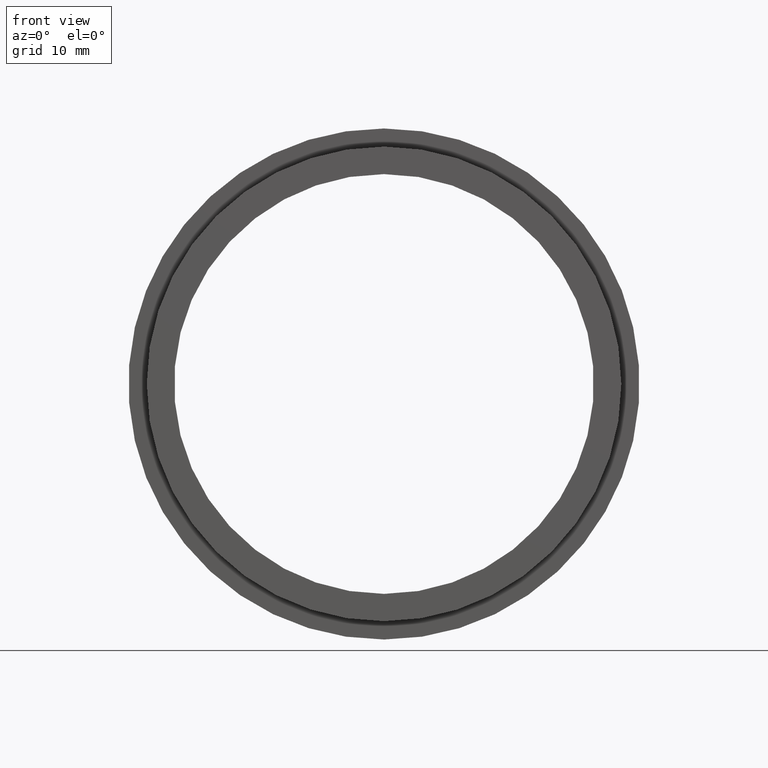
[diagram: clean part render]
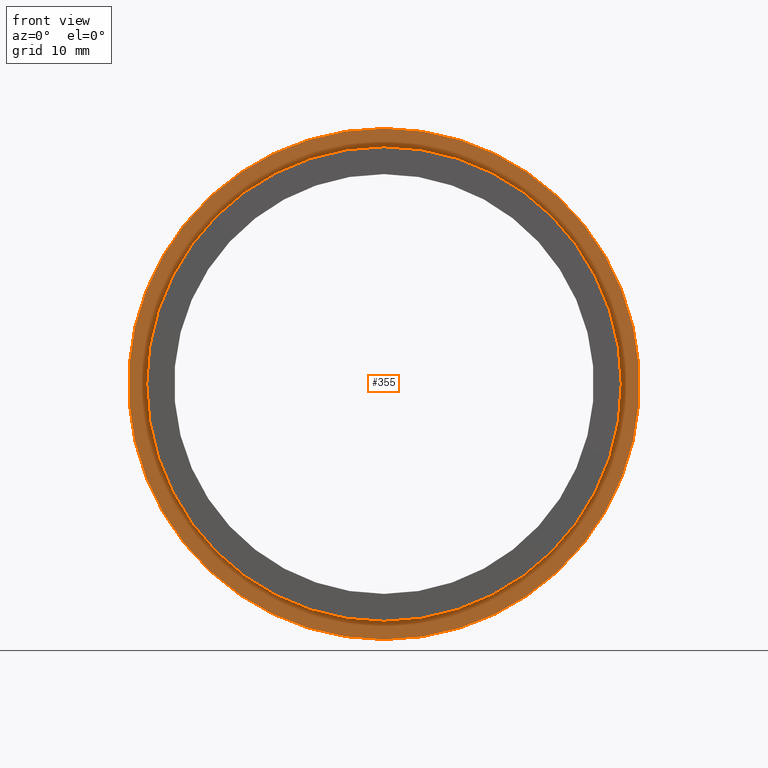
[diagram: same view with one face highlighted and labeled with its STEP entity id]
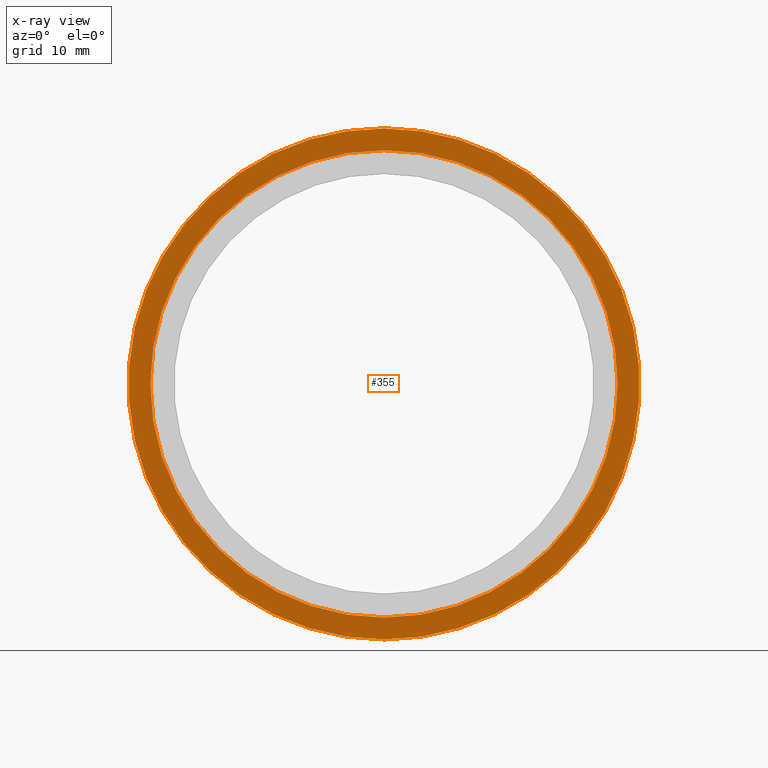
[diagram: x-ray of the same camera — body ghosted, the highlighted face saturated]
A machine part, front view. The second image highlights one B-rep face of the part: STEP entity #355.
The next image is the same camera in x-ray: the body ghosted, the highlighted face saturated — about 0% of this face is hidden behind the body in this view.
In plain terms, the highlighted planar face has unit normal (0, 1, 0).
Its self-contained STEP definition (entity closure, byte-faithful):
#7 = CIRCLE ( 'NONE', #582, 28.00000000000000000 ) ;
#16 = DIRECTION ( 'NONE',  ( 0.0000000000000000000, 0.0000000000000000000, -1.000000000000000000 ) ) ;
#43 = EDGE_LOOP ( 'NONE', ( #325, #534 ) ) ;
#45 = FACE_OUTER_BOUND ( 'NONE', #56, .T. ) ;
#56 = EDGE_LOOP ( 'NONE', ( #70, #269 ) ) ;
#64 = CARTESIAN_POINT ( 'NONE',  ( -28.00000000000000000, 5.000000000000002700, 0.0000000000000000000 ) ) ;
#70 = ORIENTED_EDGE ( 'NONE', *, *, #535, .T. ) ;
#81 = CIRCLE ( 'NONE', #403, 28.00000000000000000 ) ;
#90 = VERTEX_POINT ( 'NONE', #104 ) ;
#92 = VERTEX_POINT ( 'NONE', #624 ) ;
#104 = CARTESIAN_POINT ( 'NONE',  ( 0.0000000000000000000, 5.000000000000001800, -25.60000000000000100 ) ) ;
#121 = AXIS2_PLACEMENT_3D ( 'NONE', #145, #455, #453 ) ;
#145 = CARTESIAN_POINT ( 'NONE',  ( 0.0000000000000000000, 5.000000000000001800, 0.0000000000000000000 ) ) ;
#159 = VERTEX_POINT ( 'NONE', #559 ) ;
#176 = CARTESIAN_POINT ( 'NONE',  ( 0.0000000000000000000, 5.000000000000002700, 0.0000000000000000000 ) ) ;
#218 = DIRECTION ( 'NONE',  ( 0.0000000000000000000, -0.0000000000000000000, 1.000000000000000000 ) ) ;
#236 = CIRCLE ( 'NONE', #121, 25.60000000000000100 ) ;
#266 = PLANE ( 'NONE',  #540 ) ;
#269 = ORIENTED_EDGE ( 'NONE', *, *, #577, .T. ) ;
#278 = AXIS2_PLACEMENT_3D ( 'NONE', #364, #585, #368 ) ;
#314 = DIRECTION ( 'NONE',  ( 0.0000000000000000000, 1.000000000000000000, 0.0000000000000000000 ) ) ;
#325 = ORIENTED_EDGE ( 'NONE', *, *, #599, .F. ) ;
#327 = FACE_BOUND ( 'NONE', #43, .T. ) ;
#355 = ADVANCED_FACE ( 'NONE', ( #327, #45 ), #266, .F. ) ;
#364 = CARTESIAN_POINT ( 'NONE',  ( 0.0000000000000000000, 5.000000000000001800, 0.0000000000000000000 ) ) ;
#368 = DIRECTION ( 'NONE',  ( 0.0000000000000000000, 0.0000000000000000000, -1.000000000000000000 ) ) ;
#371 = CARTESIAN_POINT ( 'NONE',  ( 3.135095805817224400E-015, 5.000000000000001800, 25.60000000000000100 ) ) ;
#378 = CARTESIAN_POINT ( 'NONE',  ( 0.0000000000000000000, 5.000000000000002700, 0.0000000000000000000 ) ) ;
#383 = EDGE_CURVE ( 'NONE', #404, #90, #451, .T. ) ;
#403 = AXIS2_PLACEMENT_3D ( 'NONE', #176, #547, #16 ) ;
#404 = VERTEX_POINT ( 'NONE', #371 ) ;
#441 = DIRECTION ( 'NONE',  ( 0.0000000000000000000, 0.0000000000000000000, -1.000000000000000000 ) ) ;
#451 = CIRCLE ( 'NONE', #278, 25.60000000000000100 ) ;
#453 = DIRECTION ( 'NONE',  ( 0.0000000000000000000, 0.0000000000000000000, -1.000000000000000000 ) ) ;
#455 = DIRECTION ( 'NONE',  ( -0.0000000000000000000, -1.000000000000000000, -0.0000000000000000000 ) ) ;
#493 = DIRECTION ( 'NONE',  ( -0.0000000000000000000, -1.000000000000000000, -0.0000000000000000000 ) ) ;
#534 = ORIENTED_EDGE ( 'NONE', *, *, #383, .F. ) ;
#535 = EDGE_CURVE ( 'NONE', #159, #92, #7, .T. ) ;
#540 = AXIS2_PLACEMENT_3D ( 'NONE', #64, #314, #218 ) ;
#547 = DIRECTION ( 'NONE',  ( -0.0000000000000000000, -1.000000000000000000, -0.0000000000000000000 ) ) ;
#559 = CARTESIAN_POINT ( 'NONE',  ( 0.0000000000000000000, 5.000000000000002700, -28.00000000000000000 ) ) ;
#577 = EDGE_CURVE ( 'NONE', #92, #159, #81, .T. ) ;
#582 = AXIS2_PLACEMENT_3D ( 'NONE', #378, #493, #441 ) ;
#585 = DIRECTION ( 'NONE',  ( -0.0000000000000000000, -1.000000000000000000, -0.0000000000000000000 ) ) ;
#599 = EDGE_CURVE ( 'NONE', #90, #404, #236, .T. ) ;
#624 = CARTESIAN_POINT ( 'NONE',  ( 3.429011037612589300E-015, 5.000000000000002700, 28.00000000000000000 ) ) ;